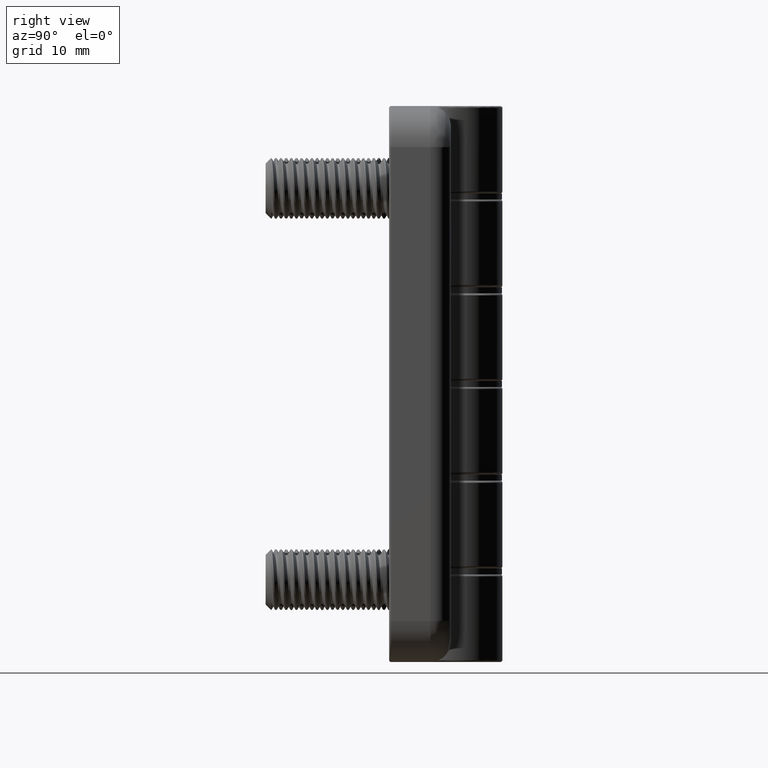
[diagram: clean part render]
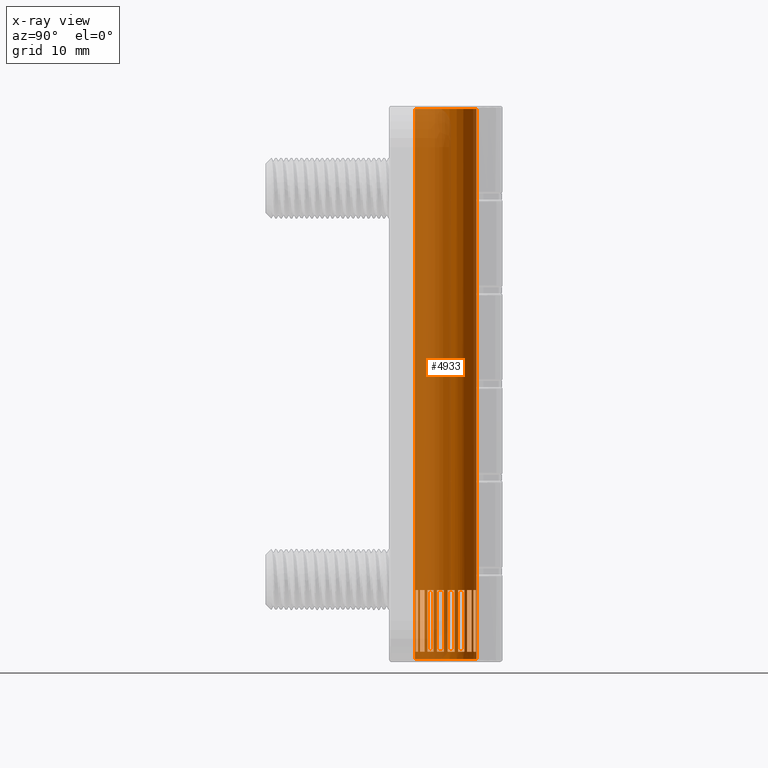
[diagram: x-ray — body ghosted, one internal face saturated and labeled with its STEP entity id]
A machine part, right view, then the same camera in x-ray: the body is ghosted and one INTERNAL B-rep face — a face not visible from any outside direction — is saturated and labeled: STEP entity #4933.
In plain terms, the highlighted cylindrical surface (bore or boss wall) has radius 3 mm, axis along (-0, -0, 1).
Its self-contained STEP definition (entity closure, byte-faithful):
#155=FACE_BOUND('',#1300,.T.);
#156=FACE_BOUND('',#1301,.T.);
#157=FACE_BOUND('',#1302,.T.);
#158=FACE_BOUND('',#1303,.T.);
#159=FACE_BOUND('',#1304,.T.);
#160=FACE_BOUND('',#1305,.T.);
#161=FACE_BOUND('',#1306,.T.);
#162=FACE_BOUND('',#1307,.T.);
#163=FACE_BOUND('',#1308,.T.);
#164=FACE_BOUND('',#1309,.T.);
#165=FACE_BOUND('',#1310,.T.);
#166=FACE_BOUND('',#1311,.T.);
#167=FACE_BOUND('',#1312,.T.);
#168=FACE_BOUND('',#1313,.T.);
#169=FACE_BOUND('',#1314,.T.);
#170=FACE_BOUND('',#1315,.T.);
#171=FACE_BOUND('',#1316,.T.);
#172=FACE_BOUND('',#1317,.T.);
#173=FACE_BOUND('',#1318,.T.);
#325=LINE('',#28425,#533);
#328=LINE('',#28452,#536);
#329=LINE('',#28463,#537);
#332=LINE('',#28490,#540);
#333=LINE('',#28501,#541);
#336=LINE('',#28528,#544);
#337=LINE('',#28539,#545);
#340=LINE('',#28566,#548);
#341=LINE('',#28577,#549);
#344=LINE('',#28604,#552);
#345=LINE('',#28615,#553);
#348=LINE('',#28642,#556);
#349=LINE('',#28653,#557);
#352=LINE('',#28680,#560);
#353=LINE('',#28691,#561);
#356=LINE('',#28718,#564);
#357=LINE('',#28729,#565);
#360=LINE('',#28756,#568);
#361=LINE('',#28767,#569);
#364=LINE('',#28794,#572);
#365=LINE('',#28805,#573);
#368=LINE('',#28832,#576);
#369=LINE('',#28843,#577);
#372=LINE('',#28870,#580);
#373=LINE('',#28881,#581);
#376=LINE('',#28908,#584);
#377=LINE('',#28919,#585);
#380=LINE('',#28946,#588);
#381=LINE('',#28957,#589);
#384=LINE('',#28984,#592);
#385=LINE('',#28995,#593);
#388=LINE('',#29022,#596);
#389=LINE('',#29033,#597);
#392=LINE('',#29060,#600);
#395=LINE('',#29510,#603);
#396=LINE('',#29512,#604);
#533=VECTOR('',#6258,6.00000000000003);
#536=VECTOR('',#6263,6.00000000000003);
#537=VECTOR('',#6266,6.00000000000003);
#540=VECTOR('',#6271,6.00000000000003);
#541=VECTOR('',#6274,6.00000000000003);
#544=VECTOR('',#6279,6.00000000000003);
#545=VECTOR('',#6282,6.00000000000003);
#548=VECTOR('',#6287,6.00000000000003);
#549=VECTOR('',#6290,6.00000000000003);
#552=VECTOR('',#6295,6.00000000000003);
#553=VECTOR('',#6298,6.00000000000003);
#556=VECTOR('',#6303,6.00000000000003);
#557=VECTOR('',#6306,6.00000000000003);
#560=VECTOR('',#6311,6.00000000000003);
#561=VECTOR('',#6314,6.00000000000003);
#564=VECTOR('',#6319,6.00000000000003);
#565=VECTOR('',#6322,6.00000000000003);
#568=VECTOR('',#6327,6.00000000000003);
#569=VECTOR('',#6330,6.00000000000003);
#572=VECTOR('',#6335,6.00000000000003);
#573=VECTOR('',#6338,6.00000000000003);
#576=VECTOR('',#6343,6.00000000000003);
#577=VECTOR('',#6346,6.00000000000003);
#580=VECTOR('',#6351,6.00000000000003);
#581=VECTOR('',#6354,6.00000000000003);
#584=VECTOR('',#6359,6.00000000000003);
#585=VECTOR('',#6362,6.00000000000003);
#588=VECTOR('',#6367,6.00000000000003);
#589=VECTOR('',#6370,6.00000000000003);
#592=VECTOR('',#6375,6.00000000000003);
#593=VECTOR('',#6378,6.00000000000003);
#596=VECTOR('',#6383,6.00000000000003);
#597=VECTOR('',#6386,6.00000000000003);
#600=VECTOR('',#6391,6.00000000000003);
#603=VECTOR('',#6576,6.00000000000003);
#604=VECTOR('',#6579,6.00000000000003);
#991=FACE_OUTER_BOUND('',#1299,.T.);
#1299=EDGE_LOOP('',(#4499));
#1300=EDGE_LOOP('',(#4500,#4501,#4502,#4503));
#1301=EDGE_LOOP('',(#4504));
#1302=EDGE_LOOP('',(#4505,#4506,#4507,#4508));
#1303=EDGE_LOOP('',(#4509,#4510,#4511,#4512));
#1304=EDGE_LOOP('',(#4513,#4514,#4515,#4516));
#1305=EDGE_LOOP('',(#4517,#4518,#4519,#4520));
#1306=EDGE_LOOP('',(#4521,#4522,#4523,#4524));
#1307=EDGE_LOOP('',(#4525,#4526,#4527,#4528));
#1308=EDGE_LOOP('',(#4529,#4530,#4531,#4532));
#1309=EDGE_LOOP('',(#4533,#4534,#4535,#4536));
#1310=EDGE_LOOP('',(#4537,#4538,#4539,#4540));
#1311=EDGE_LOOP('',(#4541,#4542,#4543,#4544));
#1312=EDGE_LOOP('',(#4545,#4546,#4547,#4548));
#1313=EDGE_LOOP('',(#4549,#4550,#4551,#4552));
#1314=EDGE_LOOP('',(#4553,#4554,#4555,#4556));
#1315=EDGE_LOOP('',(#4557,#4558,#4559,#4560));
#1316=EDGE_LOOP('',(#4561,#4562,#4563,#4564));
#1317=EDGE_LOOP('',(#4565,#4566,#4567,#4568));
#1318=EDGE_LOOP('',(#4569,#4570,#4571,#4572));
#1502=CIRCLE('',#5319,3.);
#1504=CIRCLE('',#5321,3.);
#1506=CIRCLE('',#5323,3.);
#1508=CIRCLE('',#5325,3.);
#1510=CIRCLE('',#5327,3.);
#1512=CIRCLE('',#5329,3.);
#1514=CIRCLE('',#5331,3.);
#1516=CIRCLE('',#5333,3.);
#1518=CIRCLE('',#5335,3.);
#1520=CIRCLE('',#5337,3.);
#1522=CIRCLE('',#5339,3.);
#1524=CIRCLE('',#5341,3.);
#1526=CIRCLE('',#5343,3.);
#1528=CIRCLE('',#5345,3.);
#1530=CIRCLE('',#5347,3.);
#1532=CIRCLE('',#5349,3.);
#1534=CIRCLE('',#5351,3.);
#1537=CIRCLE('',#5354,3.);
#1556=CIRCLE('',#5391,3.);
#1557=CIRCLE('',#5392,3.);
#1558=CIRCLE('',#5393,3.);
#1559=CIRCLE('',#5394,3.);
#1560=CIRCLE('',#5395,3.);
#1561=CIRCLE('',#5396,3.);
#1562=CIRCLE('',#5397,3.);
#1563=CIRCLE('',#5398,3.);
#1564=CIRCLE('',#5399,3.);
#1565=CIRCLE('',#5400,3.);
#1566=CIRCLE('',#5401,3.);
#1567=CIRCLE('',#5402,3.);
#1568=CIRCLE('',#5403,3.);
#1569=CIRCLE('',#5404,3.);
#1570=CIRCLE('',#5405,3.);
#1571=CIRCLE('',#5406,3.);
#1572=CIRCLE('',#5407,3.);
#1573=CIRCLE('',#5408,3.);
#1575=CIRCLE('',#5414,3.);
#1576=CIRCLE('',#5416,3.00000000000001);
#2224=VERTEX_POINT('',#28416);
#2226=VERTEX_POINT('',#28424);
#2229=VERTEX_POINT('',#28436);
#2231=VERTEX_POINT('',#28445);
#2232=VERTEX_POINT('',#28454);
#2234=VERTEX_POINT('',#28462);
#2237=VERTEX_POINT('',#28474);
#2239=VERTEX_POINT('',#28483);
#2240=VERTEX_POINT('',#28492);
#2242=VERTEX_POINT('',#28500);
#2245=VERTEX_POINT('',#28512);
#2247=VERTEX_POINT('',#28521);
#2248=VERTEX_POINT('',#28530);
#2250=VERTEX_POINT('',#28538);
#2253=VERTEX_POINT('',#28550);
#2255=VERTEX_POINT('',#28559);
#2256=VERTEX_POINT('',#28568);
#2258=VERTEX_POINT('',#28576);
#2261=VERTEX_POINT('',#28588);
#2263=VERTEX_POINT('',#28597);
#2264=VERTEX_POINT('',#28606);
#2266=VERTEX_POINT('',#28614);
#2269=VERTEX_POINT('',#28626);
#2271=VERTEX_POINT('',#28635);
#2272=VERTEX_POINT('',#28644);
#2274=VERTEX_POINT('',#28652);
#2277=VERTEX_POINT('',#28664);
#2279=VERTEX_POINT('',#28673);
#2280=VERTEX_POINT('',#28682);
#2282=VERTEX_POINT('',#28690);
#2285=VERTEX_POINT('',#28702);
#2287=VERTEX_POINT('',#28711);
#2288=VERTEX_POINT('',#28720);
#2290=VERTEX_POINT('',#28728);
#2293=VERTEX_POINT('',#28740);
#2295=VERTEX_POINT('',#28749);
#2296=VERTEX_POINT('',#28758);
#2298=VERTEX_POINT('',#28766);
#2301=VERTEX_POINT('',#28778);
#2303=VERTEX_POINT('',#28787);
#2304=VERTEX_POINT('',#28796);
#2306=VERTEX_POINT('',#28804);
#2309=VERTEX_POINT('',#28816);
#2311=VERTEX_POINT('',#28825);
#2312=VERTEX_POINT('',#28834);
#2314=VERTEX_POINT('',#28842);
#2317=VERTEX_POINT('',#28854);
#2319=VERTEX_POINT('',#28863);
#2320=VERTEX_POINT('',#28872);
#2322=VERTEX_POINT('',#28880);
#2325=VERTEX_POINT('',#28892);
#2327=VERTEX_POINT('',#28901);
#2328=VERTEX_POINT('',#28910);
#2330=VERTEX_POINT('',#28918);
#2333=VERTEX_POINT('',#28930);
#2335=VERTEX_POINT('',#28939);
#2336=VERTEX_POINT('',#28948);
#2338=VERTEX_POINT('',#28956);
#2341=VERTEX_POINT('',#28968);
#2343=VERTEX_POINT('',#28977);
#2344=VERTEX_POINT('',#28986);
#2346=VERTEX_POINT('',#28994);
#2349=VERTEX_POINT('',#29006);
#2351=VERTEX_POINT('',#29015);
#2352=VERTEX_POINT('',#29024);
#2354=VERTEX_POINT('',#29032);
#2357=VERTEX_POINT('',#29044);
#2359=VERTEX_POINT('',#29053);
#2360=VERTEX_POINT('',#29070);
#2363=VERTEX_POINT('',#29267);
#2366=VERTEX_POINT('',#29324);
#2367=VERTEX_POINT('',#29501);
#2369=VERTEX_POINT('',#29517);
#2370=VERTEX_POINT('',#29520);
#2889=EDGE_CURVE('',#2224,#2226,#325,.T.);
#2895=EDGE_CURVE('',#2229,#2231,#328,.T.);
#2897=EDGE_CURVE('',#2232,#2234,#329,.T.);
#2903=EDGE_CURVE('',#2237,#2239,#332,.T.);
#2905=EDGE_CURVE('',#2240,#2242,#333,.T.);
#2911=EDGE_CURVE('',#2245,#2247,#336,.T.);
#2913=EDGE_CURVE('',#2248,#2250,#337,.T.);
#2919=EDGE_CURVE('',#2253,#2255,#340,.T.);
#2921=EDGE_CURVE('',#2256,#2258,#341,.T.);
#2927=EDGE_CURVE('',#2261,#2263,#344,.T.);
#2929=EDGE_CURVE('',#2264,#2266,#345,.T.);
#2935=EDGE_CURVE('',#2269,#2271,#348,.T.);
#2937=EDGE_CURVE('',#2272,#2274,#349,.T.);
#2943=EDGE_CURVE('',#2277,#2279,#352,.T.);
#2945=EDGE_CURVE('',#2280,#2282,#353,.T.);
#2951=EDGE_CURVE('',#2285,#2287,#356,.T.);
#2953=EDGE_CURVE('',#2288,#2290,#357,.T.);
#2959=EDGE_CURVE('',#2293,#2295,#360,.T.);
#2961=EDGE_CURVE('',#2296,#2298,#361,.T.);
#2967=EDGE_CURVE('',#2301,#2303,#364,.T.);
#2969=EDGE_CURVE('',#2304,#2306,#365,.T.);
#2975=EDGE_CURVE('',#2309,#2311,#368,.T.);
#2977=EDGE_CURVE('',#2312,#2314,#369,.T.);
#2983=EDGE_CURVE('',#2317,#2319,#372,.T.);
#2985=EDGE_CURVE('',#2320,#2322,#373,.T.);
#2991=EDGE_CURVE('',#2325,#2327,#376,.T.);
#2993=EDGE_CURVE('',#2328,#2330,#377,.T.);
#2999=EDGE_CURVE('',#2333,#2335,#380,.T.);
#3001=EDGE_CURVE('',#2336,#2338,#381,.T.);
#3007=EDGE_CURVE('',#2341,#2343,#384,.T.);
#3009=EDGE_CURVE('',#2344,#2346,#385,.T.);
#3015=EDGE_CURVE('',#2349,#2351,#388,.T.);
#3017=EDGE_CURVE('',#2352,#2354,#389,.T.);
#3023=EDGE_CURVE('',#2357,#2359,#392,.T.);
#3024=EDGE_CURVE('',#2360,#2354,#1502,.T.);
#3027=EDGE_CURVE('',#2359,#2346,#1504,.T.);
#3029=EDGE_CURVE('',#2351,#2338,#1506,.T.);
#3031=EDGE_CURVE('',#2343,#2330,#1508,.T.);
#3033=EDGE_CURVE('',#2335,#2322,#1510,.T.);
#3035=EDGE_CURVE('',#2327,#2314,#1512,.T.);
#3037=EDGE_CURVE('',#2319,#2306,#1514,.T.);
#3039=EDGE_CURVE('',#2311,#2298,#1516,.T.);
#3041=EDGE_CURVE('',#2303,#2290,#1518,.T.);
#3043=EDGE_CURVE('',#2295,#2282,#1520,.T.);
#3045=EDGE_CURVE('',#2287,#2274,#1522,.T.);
#3047=EDGE_CURVE('',#2279,#2266,#1524,.T.);
#3049=EDGE_CURVE('',#2271,#2258,#1526,.T.);
#3051=EDGE_CURVE('',#2263,#2250,#1528,.T.);
#3053=EDGE_CURVE('',#2255,#2242,#1530,.T.);
#3055=EDGE_CURVE('',#2247,#2234,#1532,.T.);
#3057=EDGE_CURVE('',#2239,#2226,#1534,.T.);
#3061=EDGE_CURVE('',#2231,#2363,#1537,.T.);
#3083=EDGE_CURVE('',#2366,#2352,#1556,.T.);
#3084=EDGE_CURVE('',#2357,#2344,#1557,.T.);
#3085=EDGE_CURVE('',#2349,#2336,#1558,.T.);
#3086=EDGE_CURVE('',#2341,#2328,#1559,.T.);
#3087=EDGE_CURVE('',#2333,#2320,#1560,.T.);
#3088=EDGE_CURVE('',#2325,#2312,#1561,.T.);
#3089=EDGE_CURVE('',#2317,#2304,#1562,.T.);
#3090=EDGE_CURVE('',#2309,#2296,#1563,.T.);
#3091=EDGE_CURVE('',#2301,#2288,#1564,.T.);
#3092=EDGE_CURVE('',#2293,#2280,#1565,.T.);
#3093=EDGE_CURVE('',#2285,#2272,#1566,.T.);
#3094=EDGE_CURVE('',#2277,#2264,#1567,.T.);
#3095=EDGE_CURVE('',#2269,#2256,#1568,.T.);
#3096=EDGE_CURVE('',#2261,#2248,#1569,.T.);
#3097=EDGE_CURVE('',#2253,#2240,#1570,.T.);
#3098=EDGE_CURVE('',#2245,#2232,#1571,.T.);
#3099=EDGE_CURVE('',#2237,#2224,#1572,.T.);
#3100=EDGE_CURVE('',#2229,#2367,#1573,.T.);
#3102=EDGE_CURVE('',#2367,#2363,#395,.T.);
#3103=EDGE_CURVE('',#2366,#2360,#396,.T.);
#3105=EDGE_CURVE('',#2369,#2369,#1575,.T.);
#3106=EDGE_CURVE('',#2370,#2370,#1576,.T.);
#4499=ORIENTED_EDGE('',*,*,#3105,.T.);
#4500=ORIENTED_EDGE('',*,*,#3091,.F.);
#4501=ORIENTED_EDGE('',*,*,#2967,.T.);
#4502=ORIENTED_EDGE('',*,*,#3041,.T.);
#4503=ORIENTED_EDGE('',*,*,#2953,.F.);
#4504=ORIENTED_EDGE('',*,*,#3106,.F.);
#4505=ORIENTED_EDGE('',*,*,#3061,.T.);
#4506=ORIENTED_EDGE('',*,*,#3102,.F.);
#4507=ORIENTED_EDGE('',*,*,#3100,.F.);
#4508=ORIENTED_EDGE('',*,*,#2895,.T.);
#4509=ORIENTED_EDGE('',*,*,#2889,.F.);
#4510=ORIENTED_EDGE('',*,*,#3099,.F.);
#4511=ORIENTED_EDGE('',*,*,#2903,.T.);
#4512=ORIENTED_EDGE('',*,*,#3057,.T.);
#4513=ORIENTED_EDGE('',*,*,#2897,.F.);
#4514=ORIENTED_EDGE('',*,*,#3098,.F.);
#4515=ORIENTED_EDGE('',*,*,#2911,.T.);
#4516=ORIENTED_EDGE('',*,*,#3055,.T.);
#4517=ORIENTED_EDGE('',*,*,#2905,.F.);
#4518=ORIENTED_EDGE('',*,*,#3097,.F.);
#4519=ORIENTED_EDGE('',*,*,#2919,.T.);
#4520=ORIENTED_EDGE('',*,*,#3053,.T.);
#4521=ORIENTED_EDGE('',*,*,#2913,.F.);
#4522=ORIENTED_EDGE('',*,*,#3096,.F.);
#4523=ORIENTED_EDGE('',*,*,#2927,.T.);
#4524=ORIENTED_EDGE('',*,*,#3051,.T.);
#4525=ORIENTED_EDGE('',*,*,#2921,.F.);
#4526=ORIENTED_EDGE('',*,*,#3095,.F.);
#4527=ORIENTED_EDGE('',*,*,#2935,.T.);
#4528=ORIENTED_EDGE('',*,*,#3049,.T.);
#4529=ORIENTED_EDGE('',*,*,#2929,.F.);
#4530=ORIENTED_EDGE('',*,*,#3094,.F.);
#4531=ORIENTED_EDGE('',*,*,#2943,.T.);
#4532=ORIENTED_EDGE('',*,*,#3047,.T.);
#4533=ORIENTED_EDGE('',*,*,#2937,.F.);
#4534=ORIENTED_EDGE('',*,*,#3093,.F.);
#4535=ORIENTED_EDGE('',*,*,#2951,.T.);
#4536=ORIENTED_EDGE('',*,*,#3045,.T.);
#4537=ORIENTED_EDGE('',*,*,#2945,.F.);
#4538=ORIENTED_EDGE('',*,*,#3092,.F.);
#4539=ORIENTED_EDGE('',*,*,#2959,.T.);
#4540=ORIENTED_EDGE('',*,*,#3043,.T.);
#4541=ORIENTED_EDGE('',*,*,#2961,.F.);
#4542=ORIENTED_EDGE('',*,*,#3090,.F.);
#4543=ORIENTED_EDGE('',*,*,#2975,.T.);
#4544=ORIENTED_EDGE('',*,*,#3039,.T.);
#4545=ORIENTED_EDGE('',*,*,#2969,.F.);
#4546=ORIENTED_EDGE('',*,*,#3089,.F.);
#4547=ORIENTED_EDGE('',*,*,#2983,.T.);
#4548=ORIENTED_EDGE('',*,*,#3037,.T.);
#4549=ORIENTED_EDGE('',*,*,#2977,.F.);
#4550=ORIENTED_EDGE('',*,*,#3088,.F.);
#4551=ORIENTED_EDGE('',*,*,#2991,.T.);
#4552=ORIENTED_EDGE('',*,*,#3035,.T.);
#4553=ORIENTED_EDGE('',*,*,#2985,.F.);
#4554=ORIENTED_EDGE('',*,*,#3087,.F.);
#4555=ORIENTED_EDGE('',*,*,#2999,.T.);
#4556=ORIENTED_EDGE('',*,*,#3033,.T.);
#4557=ORIENTED_EDGE('',*,*,#2993,.F.);
#4558=ORIENTED_EDGE('',*,*,#3086,.F.);
#4559=ORIENTED_EDGE('',*,*,#3007,.T.);
#4560=ORIENTED_EDGE('',*,*,#3031,.T.);
#4561=ORIENTED_EDGE('',*,*,#3001,.F.);
#4562=ORIENTED_EDGE('',*,*,#3085,.F.);
#4563=ORIENTED_EDGE('',*,*,#3015,.T.);
#4564=ORIENTED_EDGE('',*,*,#3029,.T.);
#4565=ORIENTED_EDGE('',*,*,#3009,.F.);
#4566=ORIENTED_EDGE('',*,*,#3084,.F.);
#4567=ORIENTED_EDGE('',*,*,#3023,.T.);
#4568=ORIENTED_EDGE('',*,*,#3027,.T.);
#4569=ORIENTED_EDGE('',*,*,#3017,.F.);
#4570=ORIENTED_EDGE('',*,*,#3083,.F.);
#4571=ORIENTED_EDGE('',*,*,#3103,.T.);
#4572=ORIENTED_EDGE('',*,*,#3024,.T.);
#4670=CYLINDRICAL_SURFACE('',#5415,3.);
#4933=ADVANCED_FACE('',(#991,#155,#156,#157,#158,#159,#160,#161,#162,#163,
#164,#165,#166,#167,#168,#169,#170,#171,#172,#173),#4670,.T.);
#5319=AXIS2_PLACEMENT_3D('',#29071,#6392,#6393);
#5321=AXIS2_PLACEMENT_3D('',#29089,#6396,#6397);
#5323=AXIS2_PLACEMENT_3D('',#29100,#6400,#6401);
#5325=AXIS2_PLACEMENT_3D('',#29111,#6404,#6405);
#5327=AXIS2_PLACEMENT_3D('',#29122,#6408,#6409);
#5329=AXIS2_PLACEMENT_3D('',#29133,#6412,#6413);
#5331=AXIS2_PLACEMENT_3D('',#29144,#6416,#6417);
#5333=AXIS2_PLACEMENT_3D('',#29155,#6420,#6421);
#5335=AXIS2_PLACEMENT_3D('',#29166,#6424,#6425);
#5337=AXIS2_PLACEMENT_3D('',#29177,#6428,#6429);
#5339=AXIS2_PLACEMENT_3D('',#29188,#6432,#6433);
#5341=AXIS2_PLACEMENT_3D('',#29199,#6436,#6437);
#5343=AXIS2_PLACEMENT_3D('',#29210,#6440,#6441);
#5345=AXIS2_PLACEMENT_3D('',#29221,#6444,#6445);
#5347=AXIS2_PLACEMENT_3D('',#29232,#6448,#6449);
#5349=AXIS2_PLACEMENT_3D('',#29243,#6452,#6453);
#5351=AXIS2_PLACEMENT_3D('',#29254,#6456,#6457);
#5354=AXIS2_PLACEMENT_3D('',#29274,#6462,#6463);
#5391=AXIS2_PLACEMENT_3D('',#29331,#6538,#6539);
#5392=AXIS2_PLACEMENT_3D('',#29341,#6540,#6541);
#5393=AXIS2_PLACEMENT_3D('',#29351,#6542,#6543);
#5394=AXIS2_PLACEMENT_3D('',#29361,#6544,#6545);
#5395=AXIS2_PLACEMENT_3D('',#29371,#6546,#6547);
#5396=AXIS2_PLACEMENT_3D('',#29381,#6548,#6549);
#5397=AXIS2_PLACEMENT_3D('',#29391,#6550,#6551);
#5398=AXIS2_PLACEMENT_3D('',#29401,#6552,#6553);
#5399=AXIS2_PLACEMENT_3D('',#29411,#6554,#6555);
#5400=AXIS2_PLACEMENT_3D('',#29421,#6556,#6557);
#5401=AXIS2_PLACEMENT_3D('',#29431,#6558,#6559);
#5402=AXIS2_PLACEMENT_3D('',#29441,#6560,#6561);
#5403=AXIS2_PLACEMENT_3D('',#29451,#6562,#6563);
#5404=AXIS2_PLACEMENT_3D('',#29461,#6564,#6565);
#5405=AXIS2_PLACEMENT_3D('',#29471,#6566,#6567);
#5406=AXIS2_PLACEMENT_3D('',#29481,#6568,#6569);
#5407=AXIS2_PLACEMENT_3D('',#29491,#6570,#6571);
#5408=AXIS2_PLACEMENT_3D('',#29502,#6572,#6573);
#5414=AXIS2_PLACEMENT_3D('',#29518,#6586,#6587);
#5415=AXIS2_PLACEMENT_3D('',#29519,#6588,#6589);
#5416=AXIS2_PLACEMENT_3D('',#29521,#6590,#6591);
#6258=DIRECTION('',(1.,0.,0.));
#6263=DIRECTION('',(1.,0.,0.));
#6266=DIRECTION('',(1.,0.,0.));
#6271=DIRECTION('',(1.,0.,0.));
#6274=DIRECTION('',(1.,0.,0.));
#6279=DIRECTION('',(1.,0.,0.));
#6282=DIRECTION('',(1.,0.,0.));
#6287=DIRECTION('',(1.,0.,0.));
#6290=DIRECTION('',(1.,0.,0.));
#6295=DIRECTION('',(1.,0.,0.));
#6298=DIRECTION('',(1.,0.,0.));
#6303=DIRECTION('',(1.,0.,0.));
#6306=DIRECTION('',(1.,0.,0.));
#6311=DIRECTION('',(1.,0.,0.));
#6314=DIRECTION('',(1.,0.,0.));
#6319=DIRECTION('',(1.,0.,0.));
#6322=DIRECTION('',(1.,0.,0.));
#6327=DIRECTION('',(1.,0.,0.));
#6330=DIRECTION('',(1.,0.,0.));
#6335=DIRECTION('',(1.,0.,0.));
#6338=DIRECTION('',(1.,0.,0.));
#6343=DIRECTION('',(1.,0.,0.));
#6346=DIRECTION('',(1.,0.,0.));
#6351=DIRECTION('',(1.,0.,0.));
#6354=DIRECTION('',(1.,0.,0.));
#6359=DIRECTION('',(1.,0.,0.));
#6362=DIRECTION('',(1.,0.,0.));
#6367=DIRECTION('',(1.,0.,0.));
#6370=DIRECTION('',(1.,0.,0.));
#6375=DIRECTION('',(1.,0.,0.));
#6378=DIRECTION('',(1.,0.,0.));
#6383=DIRECTION('',(1.,0.,0.));
#6386=DIRECTION('',(1.,0.,0.));
#6391=DIRECTION('',(1.,0.,0.));
#6392=DIRECTION('center_axis',(1.,0.,0.));
#6393=DIRECTION('ref_axis',(0.,1.,0.));
#6396=DIRECTION('center_axis',(1.,0.,0.));
#6397=DIRECTION('ref_axis',(0.,1.,0.));
#6400=DIRECTION('center_axis',(1.,0.,0.));
#6401=DIRECTION('ref_axis',(0.,1.,0.));
#6404=DIRECTION('center_axis',(1.,0.,0.));
#6405=DIRECTION('ref_axis',(0.,1.,0.));
#6408=DIRECTION('center_axis',(1.,0.,0.));
#6409=DIRECTION('ref_axis',(0.,1.,0.));
#6412=DIRECTION('center_axis',(1.,0.,0.));
#6413=DIRECTION('ref_axis',(0.,1.,0.));
#6416=DIRECTION('center_axis',(1.,0.,0.));
#6417=DIRECTION('ref_axis',(0.,1.,0.));
#6420=DIRECTION('center_axis',(1.,0.,0.));
#6421=DIRECTION('ref_axis',(0.,1.,0.));
#6424=DIRECTION('center_axis',(1.,0.,0.));
#6425=DIRECTION('ref_axis',(0.,1.,0.));
#6428=DIRECTION('center_axis',(1.,0.,0.));
#6429=DIRECTION('ref_axis',(0.,1.,0.));
#6432=DIRECTION('center_axis',(1.,0.,0.));
#6433=DIRECTION('ref_axis',(0.,1.,0.));
#6436=DIRECTION('center_axis',(1.,0.,0.));
#6437=DIRECTION('ref_axis',(0.,1.,0.));
#6440=DIRECTION('center_axis',(1.,0.,0.));
#6441=DIRECTION('ref_axis',(0.,1.,0.));
#6444=DIRECTION('center_axis',(1.,0.,0.));
#6445=DIRECTION('ref_axis',(0.,1.,0.));
#6448=DIRECTION('center_axis',(1.,0.,0.));
#6449=DIRECTION('ref_axis',(0.,1.,0.));
#6452=DIRECTION('center_axis',(1.,0.,0.));
#6453=DIRECTION('ref_axis',(0.,1.,0.));
#6456=DIRECTION('center_axis',(1.,0.,0.));
#6457=DIRECTION('ref_axis',(0.,1.,0.));
#6462=DIRECTION('center_axis',(1.,0.,0.));
#6463=DIRECTION('ref_axis',(0.,1.,0.));
#6538=DIRECTION('center_axis',(1.,0.,0.));
#6539=DIRECTION('ref_axis',(0.,1.,0.));
#6540=DIRECTION('center_axis',(1.,0.,0.));
#6541=DIRECTION('ref_axis',(0.,1.,0.));
#6542=DIRECTION('center_axis',(1.,0.,0.));
#6543=DIRECTION('ref_axis',(0.,1.,0.));
#6544=DIRECTION('center_axis',(1.,0.,0.));
#6545=DIRECTION('ref_axis',(0.,1.,0.));
#6546=DIRECTION('center_axis',(1.,0.,0.));
#6547=DIRECTION('ref_axis',(0.,1.,0.));
#6548=DIRECTION('center_axis',(1.,0.,0.));
#6549=DIRECTION('ref_axis',(0.,1.,0.));
#6550=DIRECTION('center_axis',(1.,0.,0.));
#6551=DIRECTION('ref_axis',(0.,1.,0.));
#6552=DIRECTION('center_axis',(1.,0.,0.));
#6553=DIRECTION('ref_axis',(0.,1.,0.));
#6554=DIRECTION('center_axis',(1.,0.,0.));
#6555=DIRECTION('ref_axis',(0.,1.,0.));
#6556=DIRECTION('center_axis',(1.,0.,0.));
#6557=DIRECTION('ref_axis',(0.,1.,0.));
#6558=DIRECTION('center_axis',(1.,0.,0.));
#6559=DIRECTION('ref_axis',(0.,1.,0.));
#6560=DIRECTION('center_axis',(1.,0.,0.));
#6561=DIRECTION('ref_axis',(0.,1.,0.));
#6562=DIRECTION('center_axis',(1.,0.,0.));
#6563=DIRECTION('ref_axis',(0.,1.,0.));
#6564=DIRECTION('center_axis',(1.,0.,0.));
#6565=DIRECTION('ref_axis',(0.,1.,0.));
#6566=DIRECTION('center_axis',(1.,0.,0.));
#6567=DIRECTION('ref_axis',(0.,1.,0.));
#6568=DIRECTION('center_axis',(1.,0.,0.));
#6569=DIRECTION('ref_axis',(0.,1.,0.));
#6570=DIRECTION('center_axis',(1.,0.,0.));
#6571=DIRECTION('ref_axis',(0.,1.,0.));
#6572=DIRECTION('center_axis',(1.,0.,0.));
#6573=DIRECTION('ref_axis',(0.,1.,0.));
#6576=DIRECTION('',(1.,0.,0.));
#6579=DIRECTION('',(1.,0.,0.));
#6586=DIRECTION('center_axis',(1.,0.,0.));
#6587=DIRECTION('ref_axis',(0.,1.,0.));
#6588=DIRECTION('center_axis',(1.,0.,0.));
#6589=DIRECTION('ref_axis',(0.,1.,0.));
#6590=DIRECTION('center_axis',(1.,0.,0.));
#6591=DIRECTION('ref_axis',(0.,1.,0.));
#28416=CARTESIAN_POINT('',(0.999999999999982,2.91953378978456,-0.690161177049412));
#28424=CARTESIAN_POINT('',(7.00000000000001,2.91953378978456,-0.690161177049412));
#28425=CARTESIAN_POINT('',(-2.47990976827339E-16,2.91953378978456,-0.690161177049412));
#28436=CARTESIAN_POINT('',(0.999999999999982,2.97951338308792,-0.35));
#28445=CARTESIAN_POINT('',(7.00000000000001,2.97951338308792,-0.35));
#28452=CARTESIAN_POINT('',(-2.47990976827339E-16,2.97951338308792,-0.35));
#28454=CARTESIAN_POINT('',(0.999999999999982,2.50741533370341,-1.64707873045249));
#28462=CARTESIAN_POINT('',(7.00000000000001,2.50741533370341,-1.64707873045249));
#28463=CARTESIAN_POINT('',(-2.47990976827339E-16,2.50741533370341,-1.64707873045249));
#28474=CARTESIAN_POINT('',(0.999999999999982,2.68011968945659,-1.34794601159954));
#28483=CARTESIAN_POINT('',(7.00000000000001,2.68011968945659,-1.34794601159954));
#28490=CARTESIAN_POINT('',(-2.47990976827339E-16,2.68011968945659,-1.34794601159954));
#28492=CARTESIAN_POINT('',(0.999999999999982,1.79286558286851,-2.40533428066985));
#28500=CARTESIAN_POINT('',(7.00000000000001,1.79286558286851,-2.40533428066985));
#28501=CARTESIAN_POINT('',(-2.47990976827339E-16,1.79286558286851,-2.40533428066985));
#28512=CARTESIAN_POINT('',(0.999999999999982,2.05746400692284,-2.18330984063578));
#28521=CARTESIAN_POINT('',(7.00000000000001,2.05746400692284,-2.18330984063578));
#28528=CARTESIAN_POINT('',(-2.47990976827339E-16,2.05746400692284,-2.18330984063578));
#28530=CARTESIAN_POINT('',(0.999999999999982,0.862069782861719,-2.87347101768519));
#28538=CARTESIAN_POINT('',(7.00000000000001,0.862069782861719,-2.87347101768519));
#28539=CARTESIAN_POINT('',(-2.47990976827339E-16,0.862069782861719,-2.87347101768519));
#28550=CARTESIAN_POINT('',(0.999999999999982,1.18664780021941,-2.75533428066985));
#28559=CARTESIAN_POINT('',(7.00000000000001,1.18664780021941,-2.75533428066985));
#28566=CARTESIAN_POINT('',(-2.47990976827339E-16,1.18664780021941,-2.75533428066985));
#28568=CARTESIAN_POINT('',(0.999999999999982,-0.172704355753174,-2.99502474205204));
#28576=CARTESIAN_POINT('',(7.00000000000001,-0.172704355753174,-2.99502474205204));
#28577=CARTESIAN_POINT('',(-2.47990976827339E-16,-0.172704355753174,-2.99502474205204));
#28588=CARTESIAN_POINT('',(0.999999999999982,0.172704355753177,-2.99502474205204));
#28597=CARTESIAN_POINT('',(7.00000000000001,0.172704355753177,-2.99502474205204));
#28604=CARTESIAN_POINT('',(-2.47990976827339E-16,0.172704355753177,-2.99502474205204));
#28606=CARTESIAN_POINT('',(0.999999999999982,-1.18664780021941,-2.75533428066985));
#28614=CARTESIAN_POINT('',(7.00000000000001,-1.18664780021941,-2.75533428066985));
#28615=CARTESIAN_POINT('',(-2.47990976827339E-16,-1.18664780021941,-2.75533428066985));
#28626=CARTESIAN_POINT('',(0.999999999999982,-0.862069782861719,-2.87347101768519));
#28635=CARTESIAN_POINT('',(7.00000000000001,-0.862069782861719,-2.87347101768519));
#28642=CARTESIAN_POINT('',(-2.47990976827339E-16,-0.862069782861719,-2.87347101768519));
#28644=CARTESIAN_POINT('',(0.999999999999982,-2.05746400692284,-2.18330984063578));
#28652=CARTESIAN_POINT('',(7.00000000000001,-2.05746400692284,-2.18330984063578));
#28653=CARTESIAN_POINT('',(-2.47990976827339E-16,-2.05746400692284,-2.18330984063578));
#28664=CARTESIAN_POINT('',(0.999999999999982,-1.79286558286851,-2.40533428066985));
#28673=CARTESIAN_POINT('',(7.00000000000001,-1.79286558286851,-2.40533428066985));
#28680=CARTESIAN_POINT('',(-2.47990976827339E-16,-1.79286558286851,-2.40533428066985));
#28682=CARTESIAN_POINT('',(0.999999999999982,-2.68011968945659,-1.34794601159955));
#28690=CARTESIAN_POINT('',(7.00000000000001,-2.68011968945659,-1.34794601159955));
#28691=CARTESIAN_POINT('',(-2.47990976827339E-16,-2.68011968945659,-1.34794601159955));
#28702=CARTESIAN_POINT('',(0.999999999999982,-2.50741533370341,-1.6470787304525));
#28711=CARTESIAN_POINT('',(7.00000000000001,-2.50741533370341,-1.6470787304525));
#28718=CARTESIAN_POINT('',(-2.47990976827339E-16,-2.50741533370341,-1.6470787304525));
#28720=CARTESIAN_POINT('',(0.999999999999982,-2.97951338308792,-0.35));
#28728=CARTESIAN_POINT('',(7.00000000000001,-2.97951338308792,-0.35));
#28729=CARTESIAN_POINT('',(-2.47990976827339E-16,-2.97951338308792,-0.35));
#28740=CARTESIAN_POINT('',(0.999999999999982,-2.91953378978456,-0.690161177049411));
#28749=CARTESIAN_POINT('',(7.00000000000001,-2.91953378978456,-0.690161177049411));
#28756=CARTESIAN_POINT('',(-2.47990976827339E-16,-2.91953378978456,-0.690161177049411));
#28758=CARTESIAN_POINT('',(0.999999999999982,-2.91953378978456,0.69016117704941));
#28766=CARTESIAN_POINT('',(7.00000000000001,-2.91953378978456,0.69016117704941));
#28767=CARTESIAN_POINT('',(-2.47990976827339E-16,-2.91953378978456,0.69016117704941));
#28778=CARTESIAN_POINT('',(0.999999999999982,-2.97951338308792,0.349999999999998));
#28787=CARTESIAN_POINT('',(7.00000000000001,-2.97951338308792,0.349999999999998));
#28794=CARTESIAN_POINT('',(-2.47990976827339E-16,-2.97951338308792,0.349999999999998));
#28796=CARTESIAN_POINT('',(0.999999999999982,-2.50741533370341,1.64707873045249));
#28804=CARTESIAN_POINT('',(7.00000000000001,-2.50741533370341,1.64707873045249));
#28805=CARTESIAN_POINT('',(-2.47990976827339E-16,-2.50741533370341,1.64707873045249));
#28816=CARTESIAN_POINT('',(0.999999999999982,-2.68011968945659,1.34794601159954));
#28825=CARTESIAN_POINT('',(7.00000000000001,-2.68011968945659,1.34794601159954));
#28832=CARTESIAN_POINT('',(-2.47990976827339E-16,-2.68011968945659,1.34794601159954));
#28834=CARTESIAN_POINT('',(0.999999999999982,-1.79286558286851,2.40533428066985));
#28842=CARTESIAN_POINT('',(7.00000000000001,-1.79286558286851,2.40533428066985));
#28843=CARTESIAN_POINT('',(-2.47990976827339E-16,-1.79286558286851,2.40533428066985));
#28854=CARTESIAN_POINT('',(0.999999999999982,-2.05746400692284,2.18330984063578));
#28863=CARTESIAN_POINT('',(7.00000000000001,-2.05746400692284,2.18330984063578));
#28870=CARTESIAN_POINT('',(-2.47990976827339E-16,-2.05746400692284,2.18330984063578));
#28872=CARTESIAN_POINT('',(0.999999999999982,-0.86206978286172,2.87347101768519));
#28880=CARTESIAN_POINT('',(7.00000000000001,-0.86206978286172,2.87347101768519));
#28881=CARTESIAN_POINT('',(-2.47990976827339E-16,-0.86206978286172,2.87347101768519));
#28892=CARTESIAN_POINT('',(0.999999999999982,-1.18664780021941,2.75533428066985));
#28901=CARTESIAN_POINT('',(7.00000000000001,-1.18664780021941,2.75533428066985));
#28908=CARTESIAN_POINT('',(-2.47990976827339E-16,-1.18664780021941,2.75533428066985));
#28910=CARTESIAN_POINT('',(0.999999999999982,0.172704355753175,2.99502474205204));
#28918=CARTESIAN_POINT('',(7.00000000000001,0.172704355753175,2.99502474205204));
#28919=CARTESIAN_POINT('',(-2.47990976827339E-16,0.172704355753175,2.99502474205204));
#28930=CARTESIAN_POINT('',(0.999999999999982,-0.172704355753177,2.99502474205204));
#28939=CARTESIAN_POINT('',(7.00000000000001,-0.172704355753177,2.99502474205204));
#28946=CARTESIAN_POINT('',(-2.47990976827339E-16,-0.172704355753177,2.99502474205204));
#28948=CARTESIAN_POINT('',(0.999999999999982,1.1866478002194,2.75533428066985));
#28956=CARTESIAN_POINT('',(7.00000000000001,1.1866478002194,2.75533428066985));
#28957=CARTESIAN_POINT('',(-2.47990976827339E-16,1.1866478002194,2.75533428066985));
#28968=CARTESIAN_POINT('',(0.999999999999982,0.862069782861718,2.87347101768519));
#28977=CARTESIAN_POINT('',(7.00000000000001,0.862069782861718,2.87347101768519));
#28984=CARTESIAN_POINT('',(-2.47990976827339E-16,0.862069782861718,2.87347101768519));
#28986=CARTESIAN_POINT('',(0.999999999999982,2.05746400692284,2.18330984063578));
#28994=CARTESIAN_POINT('',(7.00000000000001,2.05746400692284,2.18330984063578));
#28995=CARTESIAN_POINT('',(-2.47990976827339E-16,2.05746400692284,2.18330984063578));
#29006=CARTESIAN_POINT('',(0.999999999999982,1.79286558286851,2.40533428066985));
#29015=CARTESIAN_POINT('',(7.00000000000001,1.79286558286851,2.40533428066985));
#29022=CARTESIAN_POINT('',(-2.47990976827339E-16,1.79286558286851,2.40533428066985));
#29024=CARTESIAN_POINT('',(0.999999999999982,2.68011968945659,1.34794601159955));
#29032=CARTESIAN_POINT('',(7.00000000000001,2.68011968945659,1.34794601159955));
#29033=CARTESIAN_POINT('',(-2.47990976827339E-16,2.68011968945659,1.34794601159955));
#29044=CARTESIAN_POINT('',(0.999999999999982,2.50741533370341,1.6470787304525));
#29053=CARTESIAN_POINT('',(7.00000000000001,2.50741533370341,1.6470787304525));
#29060=CARTESIAN_POINT('',(-2.47990976827339E-16,2.50741533370341,1.6470787304525));
#29070=CARTESIAN_POINT('',(7.00000000000001,2.91953378978456,0.690161177049412));
#29071=CARTESIAN_POINT('Origin',(7.,0.,0.));
#29089=CARTESIAN_POINT('Origin',(7.,0.,0.));
#29100=CARTESIAN_POINT('Origin',(7.,0.,0.));
#29111=CARTESIAN_POINT('Origin',(7.,0.,0.));
#29122=CARTESIAN_POINT('Origin',(7.,0.,0.));
#29133=CARTESIAN_POINT('Origin',(7.,0.,0.));
#29144=CARTESIAN_POINT('Origin',(7.,0.,0.));
#29155=CARTESIAN_POINT('Origin',(7.,0.,0.));
#29166=CARTESIAN_POINT('Origin',(7.,0.,0.));
#29177=CARTESIAN_POINT('Origin',(7.,0.,0.));
#29188=CARTESIAN_POINT('Origin',(7.,0.,0.));
#29199=CARTESIAN_POINT('Origin',(7.,0.,0.));
#29210=CARTESIAN_POINT('Origin',(7.,0.,0.));
#29221=CARTESIAN_POINT('Origin',(7.,0.,0.));
#29232=CARTESIAN_POINT('Origin',(7.,0.,0.));
#29243=CARTESIAN_POINT('Origin',(7.,0.,0.));
#29254=CARTESIAN_POINT('Origin',(7.,0.,0.));
#29267=CARTESIAN_POINT('',(7.00000000000001,2.97951338308792,0.35));
#29274=CARTESIAN_POINT('Origin',(7.,0.,0.));
#29324=CARTESIAN_POINT('',(0.999999999999982,2.91953378978456,0.690161177049412));
#29331=CARTESIAN_POINT('Origin',(0.999999999999996,0.,0.));
#29341=CARTESIAN_POINT('Origin',(0.999999999999996,0.,0.));
#29351=CARTESIAN_POINT('Origin',(0.999999999999996,0.,0.));
#29361=CARTESIAN_POINT('Origin',(0.999999999999996,0.,0.));
#29371=CARTESIAN_POINT('Origin',(0.999999999999996,0.,0.));
#29381=CARTESIAN_POINT('Origin',(0.999999999999996,0.,0.));
#29391=CARTESIAN_POINT('Origin',(0.999999999999996,0.,0.));
#29401=CARTESIAN_POINT('Origin',(0.999999999999996,0.,0.));
#29411=CARTESIAN_POINT('Origin',(0.999999999999996,0.,0.));
#29421=CARTESIAN_POINT('Origin',(0.999999999999996,0.,0.));
#29431=CARTESIAN_POINT('Origin',(0.999999999999996,0.,0.));
#29441=CARTESIAN_POINT('Origin',(0.999999999999996,0.,0.));
#29451=CARTESIAN_POINT('Origin',(0.999999999999996,0.,0.));
#29461=CARTESIAN_POINT('Origin',(0.999999999999996,0.,0.));
#29471=CARTESIAN_POINT('Origin',(0.999999999999996,0.,0.));
#29481=CARTESIAN_POINT('Origin',(0.999999999999996,0.,0.));
#29491=CARTESIAN_POINT('Origin',(0.999999999999996,0.,0.));
#29501=CARTESIAN_POINT('',(0.999999999999982,2.97951338308792,0.35));
#29502=CARTESIAN_POINT('Origin',(0.999999999999996,0.,0.));
#29510=CARTESIAN_POINT('',(-2.47990976827339E-16,2.97951338308792,0.35));
#29512=CARTESIAN_POINT('',(-2.47990976827339E-16,2.91953378978456,0.690161177049412));
#29517=CARTESIAN_POINT('',(0.3,-3.,-3.67394039744206E-16));
#29518=CARTESIAN_POINT('Origin',(0.300000000000002,0.,0.));
#29519=CARTESIAN_POINT('Origin',(0.649999999999995,0.,0.));
#29520=CARTESIAN_POINT('',(53.7,-3.,-3.67394039744206E-16));
#29521=CARTESIAN_POINT('Origin',(53.7,0.,0.));